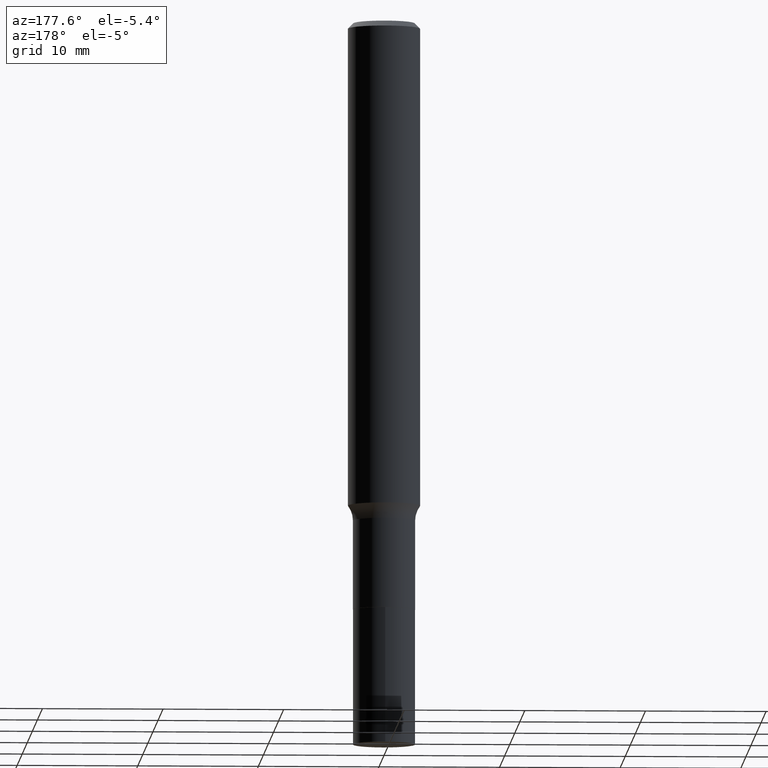
[diagram: clean part render]
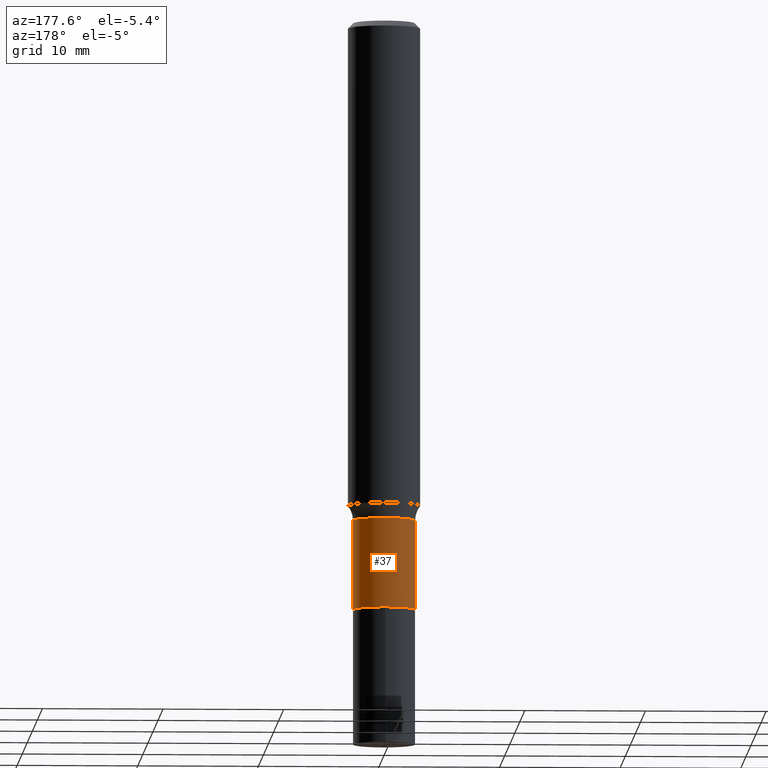
[diagram: same view with one face highlighted and labeled with its STEP entity id]
A machine part, auxiliary view. The second image highlights one B-rep face of the part: STEP entity #37.
In plain terms, the highlighted cylindrical surface (edge-blend (fillet) strip) has radius 2.5794 mm, axis along (-0, 0, 1).
Its self-contained STEP definition (entity closure, byte-faithful):
#5 = ORIENTED_EDGE ( 'NONE', *, *, #7, .F. ) ;
#7 = EDGE_CURVE ( 'NONE', #212, #78, #148, .T. ) ;
#16 = DIRECTION ( 'NONE',  ( 1.000000000000000000, -6.982962677686264344E-15, 0.000000000000000000 ) ) ;
#23 = EDGE_LOOP ( 'NONE', ( #348, #366, #247, #5 ) ) ;
#25 = AXIS2_PLACEMENT_3D ( 'NONE', #188, #82, #83 ) ;
#32 = DIRECTION ( 'NONE',  ( -2.445468806185136877E-29, 3.491481338843145188E-15, 1.000000000000000000 ) ) ;
#37 = ADVANCED_FACE ( 'NONE', ( #108 ), #69, .T. ) ;
#60 = CARTESIAN_POINT ( 'NONE',  ( -0.1015499999999999736, -5.474775783880549735E-15, -1.628700000000000259 ) ) ;
#65 = VERTEX_POINT ( 'NONE', #336 ) ;
#69 = CYLINDRICAL_SURFACE ( 'NONE', #88, 0.1015499999999999875 ) ;
#78 = VERTEX_POINT ( 'NONE', #160 ) ;
#82 = DIRECTION ( 'NONE',  ( -2.445468806185136597E-29, 3.491481338843145583E-15, 1.000000000000000000 ) ) ;
#83 = DIRECTION ( 'NONE',  ( 1.000000000000000000, -6.982962677686266711E-15, 0.000000000000000000 ) ) ;
#88 = AXIS2_PLACEMENT_3D ( 'NONE', #214, #113, #434 ) ;
#91 = EDGE_CURVE ( 'NONE', #78, #324, #231, .T. ) ;
#105 = LINE ( 'NONE', #284, #166 ) ;
#108 = FACE_OUTER_BOUND ( 'NONE', #23, .T. ) ;
#110 = VECTOR ( 'NONE', #32, 39.37007874015748143 ) ;
#113 = DIRECTION ( 'NONE',  ( -2.445468806185136597E-29, 3.491481338843145583E-15, 1.000000000000000000 ) ) ;
#148 = LINE ( 'NONE', #393, #110 ) ;
#160 = CARTESIAN_POINT ( 'NONE',  ( 0.1015499999999999736, -6.395695516492872910E-15, -1.628700000000000259 ) ) ;
#166 = VECTOR ( 'NONE', #287, 39.37007874015748143 ) ;
#188 = CARTESIAN_POINT ( 'NONE',  ( 3.982935044633732468E-29, -5.686575656573832917E-15, -1.628700000000000259 ) ) ;
#212 = VERTEX_POINT ( 'NONE', #270 ) ;
#214 = CARTESIAN_POINT ( 'NONE',  ( 0.000000000000000000, 0.000000000000000000, 0.000000000000000000 ) ) ;
#224 = EDGE_CURVE ( 'NONE', #212, #65, #232, .T. ) ;
#231 = CIRCLE ( 'NONE', #25, 0.1015499999999999736 ) ;
#232 = CIRCLE ( 'NONE', #400, 0.1015500000000000014 ) ;
#247 = ORIENTED_EDGE ( 'NONE', *, *, #91, .F. ) ;
#270 = CARTESIAN_POINT ( 'NONE',  ( 0.1015500000000000014, -7.415208067435072015E-15, -1.920700000000000296 ) ) ;
#284 = CARTESIAN_POINT ( 'NONE',  ( -0.1015499999999999875, 7.215561481643816499E-16, -4.995178584153856401E-30 ) ) ;
#287 = DIRECTION ( 'NONE',  ( -2.445468806185136877E-29, 3.491481338843145188E-15, 1.000000000000000000 ) ) ;
#324 = VERTEX_POINT ( 'NONE', #60 ) ;
#336 = CARTESIAN_POINT ( 'NONE',  ( -0.1015500000000000014, -5.474775783880549735E-15, -1.920700000000000296 ) ) ;
#348 = ORIENTED_EDGE ( 'NONE', *, *, #224, .T. ) ;
#366 = ORIENTED_EDGE ( 'NONE', *, *, #459, .T. ) ;
#378 = DIRECTION ( 'NONE',  ( -2.445468806185136597E-29, 3.491481338843145583E-15, 1.000000000000000000 ) ) ;
#393 = CARTESIAN_POINT ( 'NONE',  ( 0.1015499999999999875, -7.091198599190402890E-16, 4.951757515820772372E-30 ) ) ;
#400 = AXIS2_PLACEMENT_3D ( 'NONE', #411, #378, #16 ) ;
#411 = CARTESIAN_POINT ( 'NONE',  ( 4.697011936039792883E-29, -6.706088207516031233E-15, -1.920700000000000296 ) ) ;
#434 = DIRECTION ( 'NONE',  ( 1.000000000000000000, -6.982962677686266711E-15, 4.876176775795935793E-29 ) ) ;
#459 = EDGE_CURVE ( 'NONE', #65, #324, #105, .T. ) ;